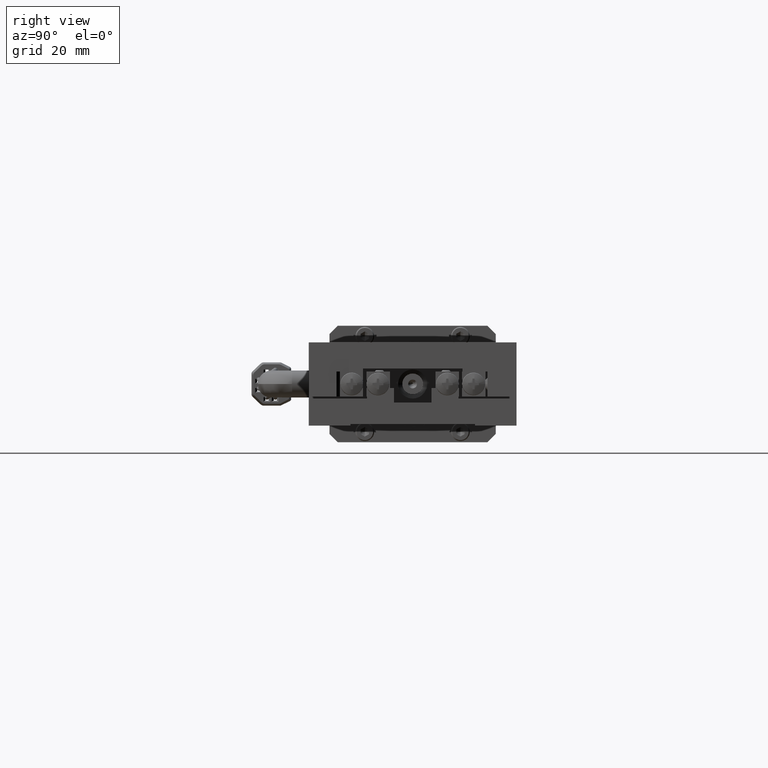
[diagram: clean part render]
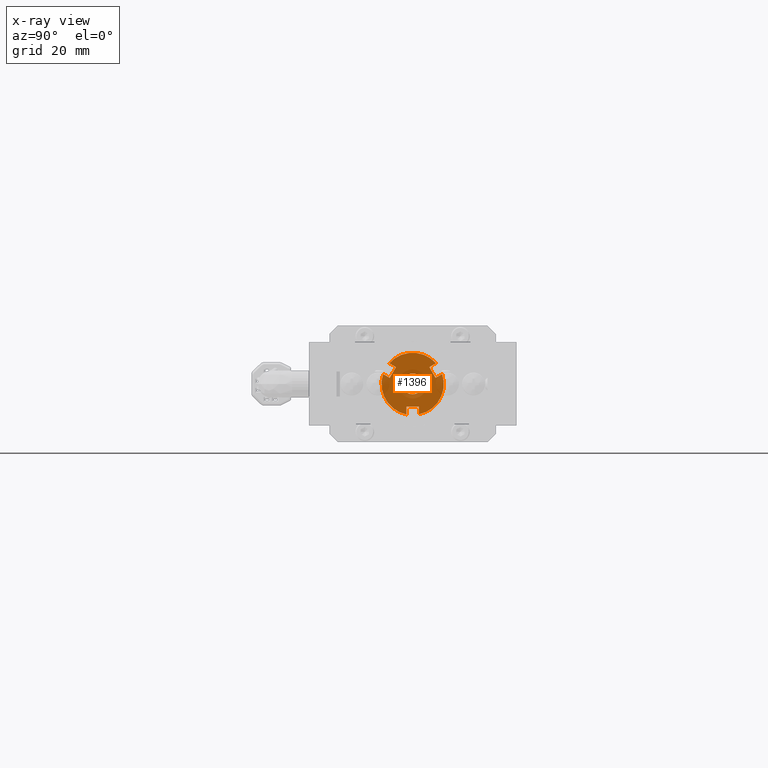
[diagram: x-ray — body ghosted, one internal face saturated and labeled with its STEP entity id]
A machine part, right view, then the same camera in x-ray: the body is ghosted and one INTERNAL B-rep face — a face not visible from any outside direction — is saturated and labeled: STEP entity #1396.
In plain terms, the highlighted planar face has unit normal (-1, 0, 0).
Its self-contained STEP definition (entity closure, byte-faithful):
#1396=ADVANCED_FACE('',(#14127,#14128),#14126,.T.);
#14126=PLANE('',#32231);
#14127=FACE_OUTER_BOUND('',#32232,.T.);
#14128=FACE_BOUND('',#32233,.T.);
#32228=CARTESIAN_POINT('',(-5.47499999999E+001,-1.17541754458E+001,7.85637892388E-001));
#32229=DIRECTION('',(-1.00000000000E+000,0.00000000000E+000,0.00000000000E+000));
#32230=DIRECTION('',(0.00000000000E+000,0.00000000000E+000,1.00000000000E+000));
#32231=AXIS2_PLACEMENT_3D('',#32228,#32229,#32230);
#32232=EDGE_LOOP('',(#46686,#46687,#46688,#46689,#46690,#46691,#46692,#46693,#46694,#46695,#46696,#46697));
#32233=EDGE_LOOP('',(#46698,#46699));
#46686=ORIENTED_EDGE('',*,*,#53276,.F.);
#46687=ORIENTED_EDGE('',*,*,#53269,.F.);
#46688=ORIENTED_EDGE('',*,*,#53272,.T.);
#46689=ORIENTED_EDGE('',*,*,#55096,.T.);
#46690=ORIENTED_EDGE('',*,*,#53296,.F.);
#46691=ORIENTED_EDGE('',*,*,#53289,.F.);
#46692=ORIENTED_EDGE('',*,*,#53292,.T.);
#46693=ORIENTED_EDGE('',*,*,#55100,.T.);
#46694=ORIENTED_EDGE('',*,*,#53286,.F.);
#46695=ORIENTED_EDGE('',*,*,#53279,.F.);
#46696=ORIENTED_EDGE('',*,*,#53282,.T.);
#46697=ORIENTED_EDGE('',*,*,#55105,.T.);
#46698=ORIENTED_EDGE('',*,*,#55106,.T.);
#46699=ORIENTED_EDGE('',*,*,#55107,.T.);
#53269=EDGE_CURVE('',#66232,#66239,#66240,.T.);
#53272=EDGE_CURVE('',#66232,#66253,#66260,.T.);
#53276=EDGE_CURVE('',#66239,#66272,#66286,.T.);
#53279=EDGE_CURVE('',#66300,#66307,#66308,.T.);
#53282=EDGE_CURVE('',#66300,#66321,#66328,.T.);
#53286=EDGE_CURVE('',#66307,#66340,#66354,.T.);
#53289=EDGE_CURVE('',#66368,#66375,#66376,.T.);
#53292=EDGE_CURVE('',#66368,#66389,#66396,.T.);
#53296=EDGE_CURVE('',#66375,#66408,#66422,.T.);
#55096=EDGE_CURVE('',#66253,#66408,#78608,.T.);
#55100=EDGE_CURVE('',#66389,#66340,#78635,.T.);
#55105=EDGE_CURVE('',#66321,#66272,#78668,.T.);
#55106=EDGE_CURVE('',#78674,#78675,#78676,.T.);
#55107=EDGE_CURVE('',#78675,#78674,#78682,.T.);
#66232=VERTEX_POINT('',#97701);
#66239=VERTEX_POINT('',#97705);
#66240=LINE('',#97706,#97707);
#66253=VERTEX_POINT('',#97713);
#66260=LINE('',#97717,#97718);
#66272=VERTEX_POINT('',#97723);
#66286=LINE('',#97731,#97732);
#66300=VERTEX_POINT('',#97739);
#66307=VERTEX_POINT('',#97743);
#66308=LINE('',#97744,#97745);
#66321=VERTEX_POINT('',#97751);
#66328=LINE('',#97755,#97756);
#66340=VERTEX_POINT('',#97761);
#66354=LINE('',#97769,#97770);
#66368=VERTEX_POINT('',#97777);
#66375=VERTEX_POINT('',#97781);
#66376=LINE('',#97782,#97783);
#66389=VERTEX_POINT('',#97789);
#66396=LINE('',#97793,#97794);
#66408=VERTEX_POINT('',#97799);
#66422=LINE('',#97807,#97808);
#78608=CIRCLE('',#105496,7.50000000000E+000);
#78635=CIRCLE('',#105559,7.50000000000E+000);
#78668=CIRCLE('',#105626,7.50000000000E+000);
#78674=VERTEX_POINT('',#105627);
#78675=VERTEX_POINT('',#105628);
#78676=CIRCLE('',#105632,2.50000000000E+000);
#78682=CIRCLE('',#105636,2.50000000000E+000);
#97701=CARTESIAN_POINT('',(-5.47499999999E+001,-4.01314079325E+000,1.40490381057E+001));
#97705=CARTESIAN_POINT('',(-5.47499999999E+001,-5.51314079325E+000,1.14509618943E+001));
#97706=CARTESIAN_POINT('',(-5.47499999999E+001,-4.01314079325E+000,1.40490381057E+001));
#97707=VECTOR('',#97708,3.00000000000E+000);
#97708=DIRECTION('',(0.00000000000E+000,-5.00000000000E-001,-8.66025403784E-001));
#97713=CARTESIAN_POINT('',(-5.47499999999E+001,-5.61396210311E+000,1.49732727199E+001));
#97717=CARTESIAN_POINT('',(-5.47499999999E+001,-4.01314079325E+000,1.40490381057E+001));
#97718=VECTOR('',#97719,1.84846922835E+000);
#97719=DIRECTION('',(0.00000000000E+000,-8.66025403784E-001,5.00000000000E-001));
#97723=CARTESIAN_POINT('',(-5.47499999999E+001,-7.11396210311E+000,1.23751965085E+001));
#97731=CARTESIAN_POINT('',(-5.47499999999E+001,-5.51314079325E+000,1.14509618943E+001));
#97732=VECTOR('',#97733,1.84846922835E+000);
#97733=DIRECTION('',(0.00000000000E+000,-8.66025403784E-001,5.00000000000E-001));
#97739=CARTESIAN_POINT('',(-5.47499999999E+001,-1.50000107243E+000,4.50000000000E+000));
#97743=CARTESIAN_POINT('',(-5.47499999999E+001,1.49999892757E+000,4.50000000000E+000));
#97744=CARTESIAN_POINT('',(-5.47499999999E+001,-1.50000107243E+000,4.50000000000E+000));
#97745=VECTOR('',#97746,3.00000000000E+000);
#97746=DIRECTION('',(0.00000000000E+000,1.00000000000E+000,5.92118946467E-016));
#97751=CARTESIAN_POINT('',(-5.47499999999E+001,-1.50000107243E+000,2.65153077165E+000));
#97755=CARTESIAN_POINT('',(-5.47499999999E+001,-1.50000107243E+000,4.50000000000E+000));
#97756=VECTOR('',#97757,1.84846922835E+000);
#97757=DIRECTION('',(0.00000000000E+000,3.60370518783E-016,-1.00000000000E+000));
#97761=CARTESIAN_POINT('',(-5.47499999999E+001,1.49999892757E+000,2.65153077165E+000));
#97769=CARTESIAN_POINT('',(-5.47499999999E+001,1.49999892757E+000,4.50000000000E+000));
#97770=VECTOR('',#97771,1.84846922835E+000);
#97771=DIRECTION('',(0.00000000000E+000,3.60370518783E-016,-1.00000000000E+000));
#97777=CARTESIAN_POINT('',(-5.47499999999E+001,5.51313864838E+000,1.14509618943E+001));
#97781=CARTESIAN_POINT('',(-5.47499999999E+001,4.01313864838E+000,1.40490381057E+001));
#97782=CARTESIAN_POINT('',(-5.47499999999E+001,5.51313864838E+000,1.14509618943E+001));
#97783=VECTOR('',#97784,3.00000000000E+000);
#97784=DIRECTION('',(0.00000000000E+000,-5.00000000000E-001,8.66025403784E-001));
#97789=CARTESIAN_POINT('',(-5.47499999999E+001,7.11395995825E+000,1.23751965085E+001));
#97793=CARTESIAN_POINT('',(-5.47499999999E+001,5.51313864838E+000,1.14509618943E+001));
#97794=VECTOR('',#97795,1.84846922835E+000);
#97795=DIRECTION('',(0.00000000000E+000,8.66025403784E-001,5.00000000000E-001));
#97799=CARTESIAN_POINT('',(-5.47499999999E+001,5.61395995825E+000,1.49732727199E+001));
#97807=CARTESIAN_POINT('',(-5.47499999999E+001,4.01313864838E+000,1.40490381057E+001));
#97808=VECTOR('',#97809,1.84846922835E+000);
#97809=DIRECTION('',(0.00000000000E+000,8.66025403784E-001,5.00000000000E-001));
#105493=CARTESIAN_POINT('',(-5.47499999999E+001,-1.07243246816E-006,1.00000000000E+001));
#105494=DIRECTION('',(-1.00000000000E+000,0.00000000000E+000,0.00000000000E+000));
#105495=DIRECTION('',(-0.00000000000E+000,-0.00000000000E+000,-1.00000000000E+000));
#105496=AXIS2_PLACEMENT_3D('',#105493,#105494,#105495);
#105556=CARTESIAN_POINT('',(-5.47499999999E+001,-1.07243246816E-006,1.00000000000E+001));
#105557=DIRECTION('',(-1.00000000000E+000,0.00000000000E+000,0.00000000000E+000));
#105558=DIRECTION('',(-0.00000000000E+000,-0.00000000000E+000,-1.00000000000E+000));
#105559=AXIS2_PLACEMENT_3D('',#105556,#105557,#105558);
#105623=CARTESIAN_POINT('',(-5.47499999999E+001,-1.07243246816E-006,1.00000000000E+001));
#105624=DIRECTION('',(-1.00000000000E+000,0.00000000000E+000,0.00000000000E+000));
#105625=DIRECTION('',(-0.00000000000E+000,-0.00000000000E+000,-1.00000000000E+000));
#105626=AXIS2_PLACEMENT_3D('',#105623,#105624,#105625);
#105627=CARTESIAN_POINT('',(-5.47499999999E+001,-1.07243247616E-006,1.25000000000E+001));
#105628=CARTESIAN_POINT('',(-5.47499999999E+001,-2.18520349134E-006,7.50000000000E+000));
#105629=CARTESIAN_POINT('',(-5.47499999999E+001,-1.07243247616E-006,1.00000000000E+001));
#105630=DIRECTION('',(1.00000000000E+000,0.00000000000E+000,-0.00000000000E+000));
#105631=DIRECTION('',(0.00000000000E+000,-1.22464679915E-016,1.00000000000E+000));
#105632=AXIS2_PLACEMENT_3D('',#105629,#105630,#105631);
#105633=CARTESIAN_POINT('',(-5.47499999999E+001,-1.07243247616E-006,1.00000000000E+001));
#105634=DIRECTION('',(1.00000000000E+000,0.00000000000E+000,-0.00000000000E+000));
#105635=DIRECTION('',(0.00000000000E+000,-1.22464679915E-016,1.00000000000E+000));
#105636=AXIS2_PLACEMENT_3D('',#105633,#105634,#105635);